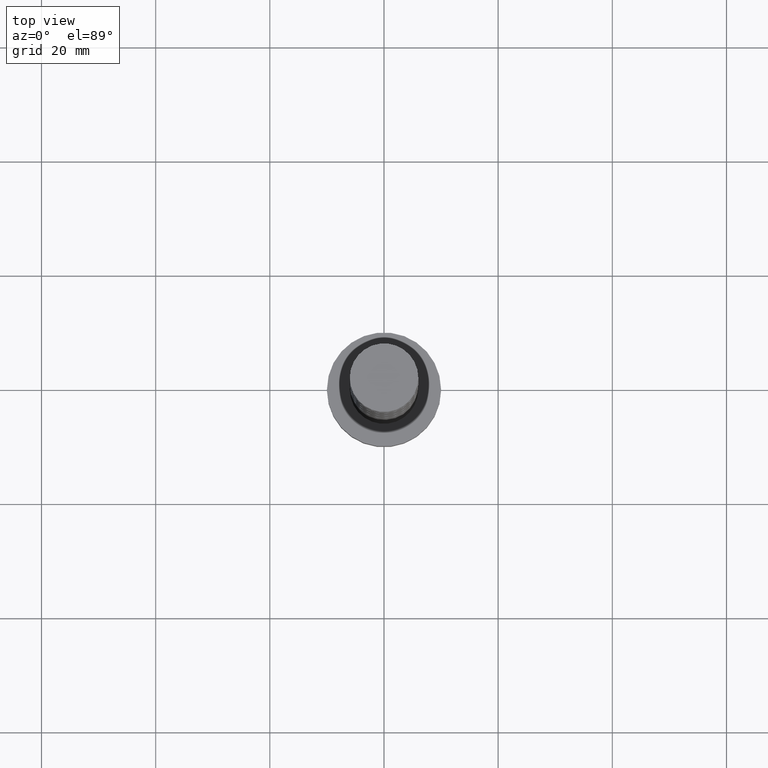
[diagram: clean part render]
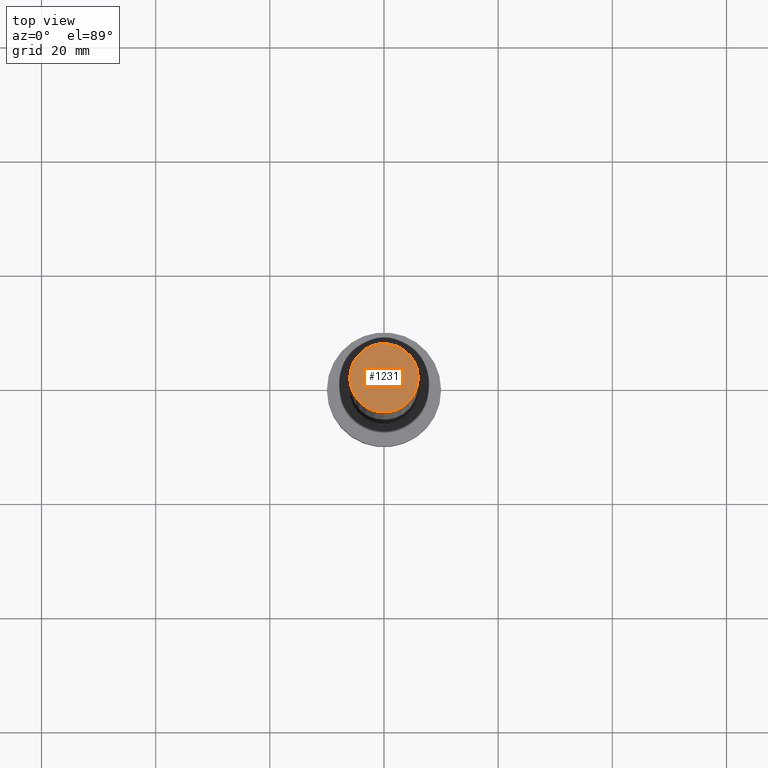
[diagram: same view with one face highlighted and labeled with its STEP entity id]
A machine part, top view. The second image highlights one B-rep face of the part: STEP entity #1231.
In plain terms, the highlighted planar face has unit normal (0, 0, 1).
Its self-contained STEP definition (entity closure, byte-faithful):
#101 = CARTESIAN_POINT ( 'NONE',  ( -6.000000000000000888, 0.000000000000000000, 125.0000000000000000 ) ) ;
#113 = FACE_OUTER_BOUND ( 'NONE', #465, .T. ) ;
#224 = DIRECTION ( 'NONE',  ( 1.000000000000000000, 0.000000000000000000, 0.000000000000000000 ) ) ;
#430 = EDGE_CURVE ( 'NONE', #1106, #802, #713, .T. ) ;
#465 = EDGE_LOOP ( 'NONE', ( #1271, #1384 ) ) ;
#468 = CARTESIAN_POINT ( 'NONE',  ( 6.000000000000000888, 7.347880794884120722E-16, 125.0000000000000000 ) ) ;
#471 = PLANE ( 'NONE',  #739 ) ;
#558 = AXIS2_PLACEMENT_3D ( 'NONE', #1084, #700, #1310 ) ;
#694 = CIRCLE ( 'NONE', #1527, 6.000000000000000888 ) ;
#700 = DIRECTION ( 'NONE',  ( 0.000000000000000000, 0.000000000000000000, 1.000000000000000000 ) ) ;
#713 = CIRCLE ( 'NONE', #558, 6.000000000000000888 ) ;
#739 = AXIS2_PLACEMENT_3D ( 'NONE', #889, #861, #1135 ) ;
#778 = CARTESIAN_POINT ( 'NONE',  ( 0.000000000000000000, 0.000000000000000000, 125.0000000000000000 ) ) ;
#794 = DIRECTION ( 'NONE',  ( 0.000000000000000000, 0.000000000000000000, 1.000000000000000000 ) ) ;
#802 = VERTEX_POINT ( 'NONE', #468 ) ;
#861 = DIRECTION ( 'NONE',  ( 0.000000000000000000, 0.000000000000000000, 1.000000000000000000 ) ) ;
#889 = CARTESIAN_POINT ( 'NONE',  ( 0.000000000000000000, 0.000000000000000000, 125.0000000000000000 ) ) ;
#1084 = CARTESIAN_POINT ( 'NONE',  ( 0.000000000000000000, 0.000000000000000000, 125.0000000000000000 ) ) ;
#1097 = EDGE_CURVE ( 'NONE', #802, #1106, #694, .T. ) ;
#1106 = VERTEX_POINT ( 'NONE', #101 ) ;
#1135 = DIRECTION ( 'NONE',  ( 1.000000000000000000, 0.000000000000000000, -0.000000000000000000 ) ) ;
#1231 = ADVANCED_FACE ( 'NONE', ( #113 ), #471, .T. ) ;
#1271 = ORIENTED_EDGE ( 'NONE', *, *, #430, .T. ) ;
#1310 = DIRECTION ( 'NONE',  ( 1.000000000000000000, 0.000000000000000000, 0.000000000000000000 ) ) ;
#1384 = ORIENTED_EDGE ( 'NONE', *, *, #1097, .T. ) ;
#1527 = AXIS2_PLACEMENT_3D ( 'NONE', #778, #794, #224 ) ;